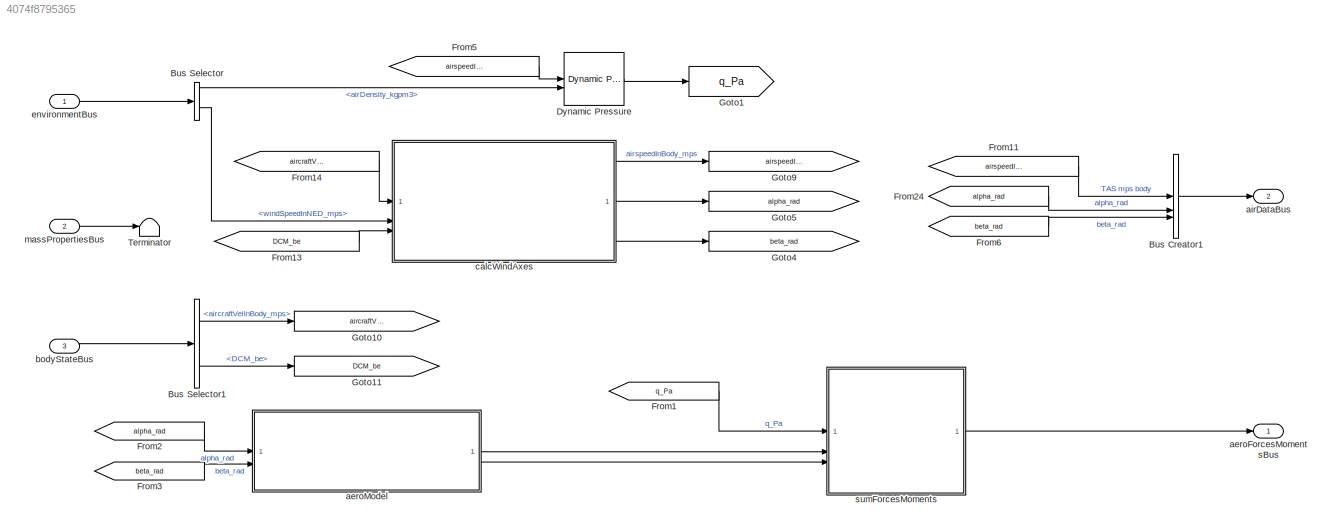
MODEL slx_4074f8795365
KIND model
CONFIG AbsTol = auto
CONFIG EnableMultiTasking = off
CONFIG FixedStep = auto
CONFIG MaxStep = auto
CONFIG MinStep = auto
CONFIG RelTol = 1e-3
CONFIG SampleTimeConstraint = Unconstrained
CONFIG SolverName = VariableStepAuto
CONFIG StartTime = 0.0
CONFIG StopTime = inf
BLOCK [BusCreator] Bus Creator1
  DisplayOption = bar
  InheritFromInputs = on
  Inputs = 3
BLOCK [BusSelector] Bus Selector
  OutputSignals = AirEnvironment.airDensity_kgpm3,AirEnvironment.windSpeedInNED_mps
BLOCK [BusSelector] Bus Selector1
  OutputSignals = aircraftVelInBody_mps,DCM_be
BLOCK [Reference] Dynamic Pressure  REF=aerolibasang/Dynamic Pressure
  SourceBlock = aerolibasang/Dynamic Pressure
  SourceType = Dynamic Pressure
BLOCK [From] From1
  GotoTag = q_Pa
BLOCK [From] From11
  GotoTag = airspeedInBody_mps
BLOCK [From] From13
  GotoTag = DCM_be
BLOCK [From] From14
  GotoTag = aircraftVelInBody_mps
BLOCK [From] From2
  GotoTag = alpha_rad
BLOCK [From] From24
  GotoTag = alpha_rad
BLOCK [From] From3
  GotoTag = beta_rad
BLOCK [From] From5
  GotoTag = airspeedInBody_mps
BLOCK [From] From6
  GotoTag = beta_rad
BLOCK [Goto] Goto1
  GotoTag = q_Pa
BLOCK [Goto] Goto10
  GotoTag = aircraftVelInBody_mps
BLOCK [Goto] Goto11
  GotoTag = DCM_be
BLOCK [Goto] Goto4
  GotoTag = beta_rad
BLOCK [Goto] Goto5
  GotoTag = alpha_rad
BLOCK [Goto] Goto9
  GotoTag = airspeedInBody_mps
BLOCK [Terminator] Terminator
BLOCK [Outport] aeroForcesMomentsBus
  OutDataTypeStr = Bus: ComponentForcesMomentsBus
BLOCK [ModelReference] aeroModel
  ModelNameDialog = hexAeroCoefficientsModel
  ModelReferenceVersion = 1.15
BLOCK [Outport] airDataBus
  OutDataTypeStr = Bus: AirDataBus
  Port = 2
BLOCK [Inport] bodyStateBus
  OutDataTypeStr = Bus: BodyStateBus
  Port = 3
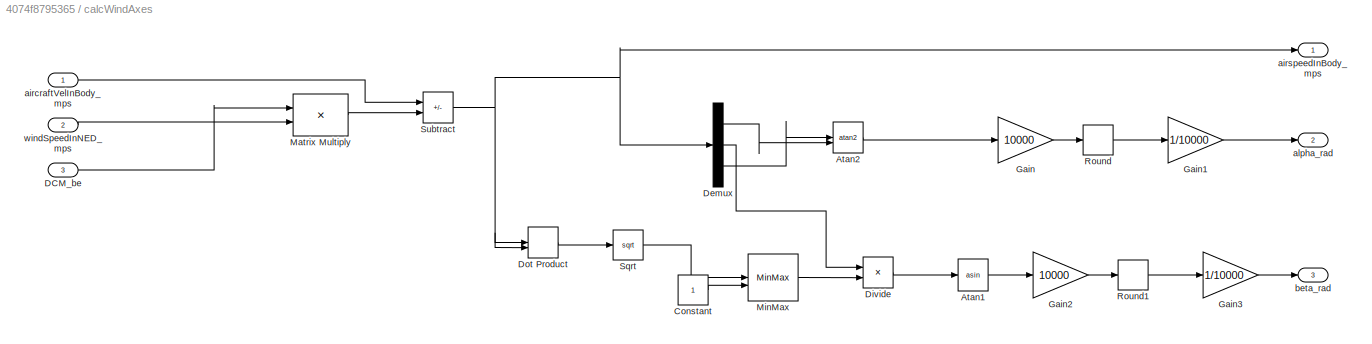
BLOCK [SubSystem] calcWindAxes
BLOCK [Trigonometry] calcWindAxes/Atan1
  Operator = asin
BLOCK [Trigonometry] calcWindAxes/Atan2
  Operator = atan2
BLOCK [Constant] calcWindAxes/Constant
BLOCK [Inport] calcWindAxes/DCM_be
  Port = 3
BLOCK [Demux] calcWindAxes/Demux
  Outputs = 3
BLOCK [Product] calcWindAxes/Divide
  Inputs = */
BLOCK [DotProduct] calcWindAxes/Dot Product
  OutDataTypeStr = Inherit: Inherit via internal rule
BLOCK [Gain] calcWindAxes/Gain
  Gain = 10000
BLOCK [Gain] calcWindAxes/Gain1
  Gain = 1/10000
BLOCK [Gain] calcWindAxes/Gain2
  Gain = 10000
BLOCK [Gain] calcWindAxes/Gain3
  Gain = 1/10000
BLOCK [Product] calcWindAxes/Matrix Multiply
  Multiplication = Matrix(*)
BLOCK [MinMax] calcWindAxes/MinMax
  Function = max
  Inputs = 2
BLOCK [Rounding] calcWindAxes/Round
  Operator = round
BLOCK [Rounding] calcWindAxes/Round1
  Operator = round
BLOCK [Sqrt] calcWindAxes/Sqrt
BLOCK [Sum] calcWindAxes/Subtract
  IconShape = rectangular
  Inputs = +-
BLOCK [Inport] calcWindAxes/aircraftVelInBody_mps
BLOCK [Outport] calcWindAxes/airspeedInBody_mps
BLOCK [Outport] calcWindAxes/alpha_rad
  Port = 2
BLOCK [Outport] calcWindAxes/beta_rad
  Port = 3
BLOCK [Inport] calcWindAxes/windSpeedInNED_mps
  Port = 2
BLOCK [Inport] environmentBus
  OutDataTypeStr = Bus: EnvironmentBus
BLOCK [Inport] massPropertiesBus
  OutDataTypeStr = Bus: MassPropertiesBus
  Port = 2
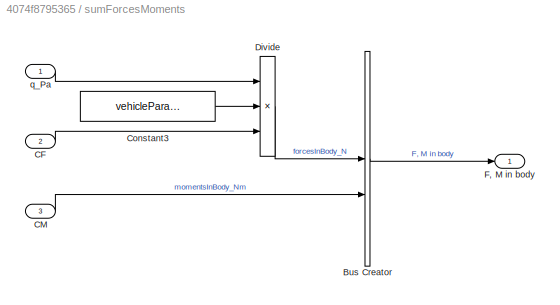
BLOCK [SubSystem] sumForcesMoments
BLOCK [BusCreator] sumForcesMoments/Bus Creator
  DisplayOption = bar
  InheritFromInputs = on
  Inputs = 2
BLOCK [Inport] sumForcesMoments/CF
  Port = 2
BLOCK [Inport] sumForcesMoments/CM
  Port = 3
BLOCK [Constant] sumForcesMoments/Constant3
  Value = vehicleParams.SRef_m2
BLOCK [Product] sumForcesMoments/Divide
  Inputs = ***
BLOCK [Outport] sumForcesMoments/F, M in body
BLOCK [Inport] sumForcesMoments/q_Pa
LINE Bus Creator1:1 -> airDataBus:1
LINE Bus Selector1:1 -> Goto10:1
LINE Bus Selector1:2 -> Goto11:1
LINE Bus Selector:1 -> Dynamic Pressure:2
LINE Bus Selector:2 -> calcWindAxes:2
LINE Dynamic Pressure:1 -> Goto1:1
LINE From11:1 -> Bus Creator1:1
LINE From13:1 -> calcWindAxes:3
LINE From14:1 -> calcWindAxes:1
LINE From1:1 -> sumForcesMoments:1
LINE From24:1 -> Bus Creator1:2
LINE From2:1 -> aeroModel:1
LINE From3:1 -> aeroModel:2
LINE From5:1 -> Dynamic Pressure:1
LINE From6:1 -> Bus Creator1:3
LINE aeroModel:1 -> sumForcesMoments:2
LINE aeroModel:2 -> sumForcesMoments:3
LINE bodyStateBus:1 -> Bus Selector1:1
LINE calcWindAxes/Atan1:1 -> calcWindAxes/Gain2:1
LINE calcWindAxes/Atan2:1 -> calcWindAxes/Gain:1
LINE calcWindAxes/Constant:1 -> calcWindAxes/MinMax:2
LINE calcWindAxes/DCM_be:1 -> calcWindAxes/Matrix Multiply:1
LINE calcWindAxes/Demux:1 -> calcWindAxes/Atan2:2
LINE calcWindAxes/Demux:2 -> calcWindAxes/Divide:1
LINE calcWindAxes/Demux:3 -> calcWindAxes/Atan2:1
LINE calcWindAxes/Divide:1 -> calcWindAxes/Atan1:1
LINE calcWindAxes/Dot Product:1 -> calcWindAxes/Sqrt:1
LINE calcWindAxes/Gain1:1 -> calcWindAxes/alpha_rad:1
LINE calcWindAxes/Gain2:1 -> calcWindAxes/Round1:1
LINE calcWindAxes/Gain3:1 -> calcWindAxes/beta_rad:1
LINE calcWindAxes/Gain:1 -> calcWindAxes/Round:1
LINE calcWindAxes/Matrix Multiply:1 -> calcWindAxes/Subtract:2
LINE calcWindAxes/MinMax:1 -> calcWindAxes/Divide:2
LINE calcWindAxes/Round1:1 -> calcWindAxes/Gain3:1
LINE calcWindAxes/Round:1 -> calcWindAxes/Gain1:1
LINE calcWindAxes/Sqrt:1 -> calcWindAxes/MinMax:1
NET calcWindAxes/Subtract:1 -> calcWindAxes/Demux:1, calcWindAxes/Dot Product:1, calcWindAxes/Dot Product:2, calcWindAxes/airspeedInBody_mps:1
LINE calcWindAxes/aircraftVelInBody_mps:1 -> calcWindAxes/Subtract:1
LINE calcWindAxes/windSpeedInNED_mps:1 -> calcWindAxes/Matrix Multiply:2
LINE calcWindAxes:1 -> Goto9:1
LINE calcWindAxes:2 -> Goto5:1
LINE calcWindAxes:3 -> Goto4:1
LINE environmentBus:1 -> Bus Selector:1
LINE massPropertiesBus:1 -> Terminator:1
LINE sumForcesMoments/Bus Creator:1 -> sumForcesMoments/F, M in body:1
LINE sumForcesMoments/CF:1 -> sumForcesMoments/Divide:3
LINE sumForcesMoments/CM:1 -> sumForcesMoments/Bus Creator:2
LINE sumForcesMoments/Constant3:1 -> sumForcesMoments/Divide:2
LINE sumForcesMoments/Divide:1 -> sumForcesMoments/Bus Creator:1
LINE sumForcesMoments/q_Pa:1 -> sumForcesMoments/Divide:1
LINE sumForcesMoments:1 -> aeroForcesMomentsBus:1
note: NET lines group one-source signal fan-out (src -> all destinations, sorted); 1:1 wires keep LINE
